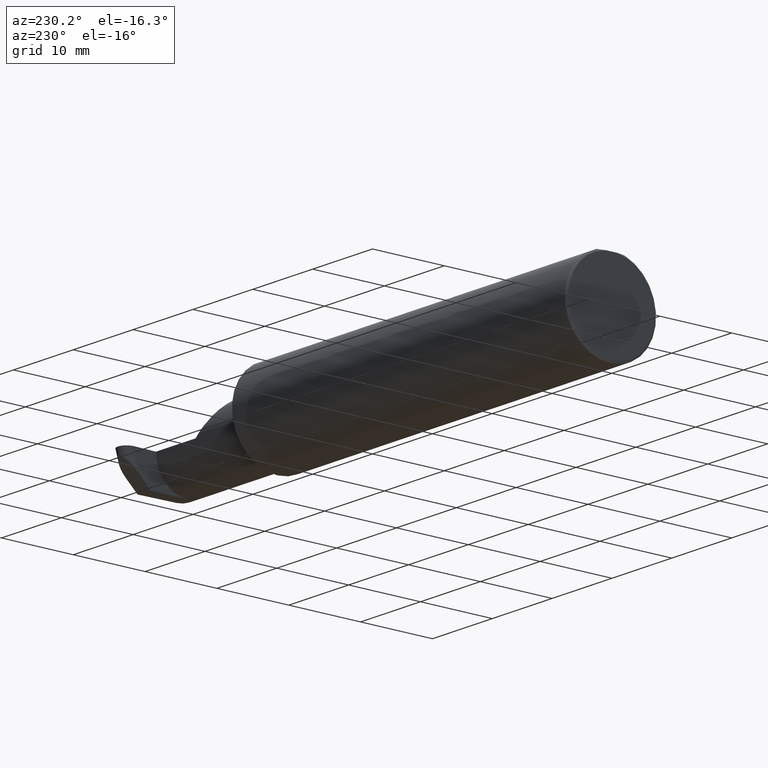
[diagram: clean part render]
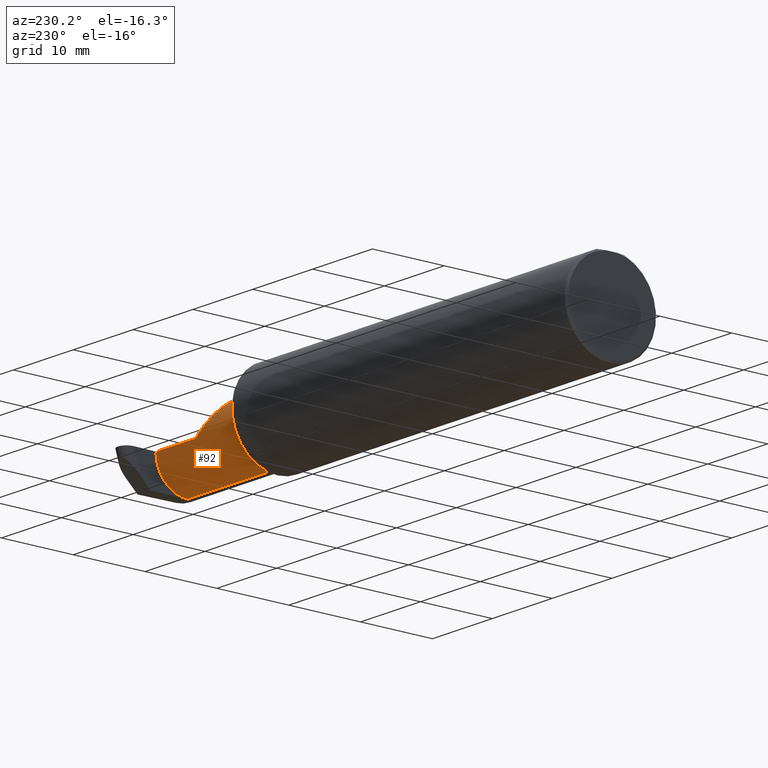
[diagram: same view with one face highlighted and labeled with its STEP entity id]
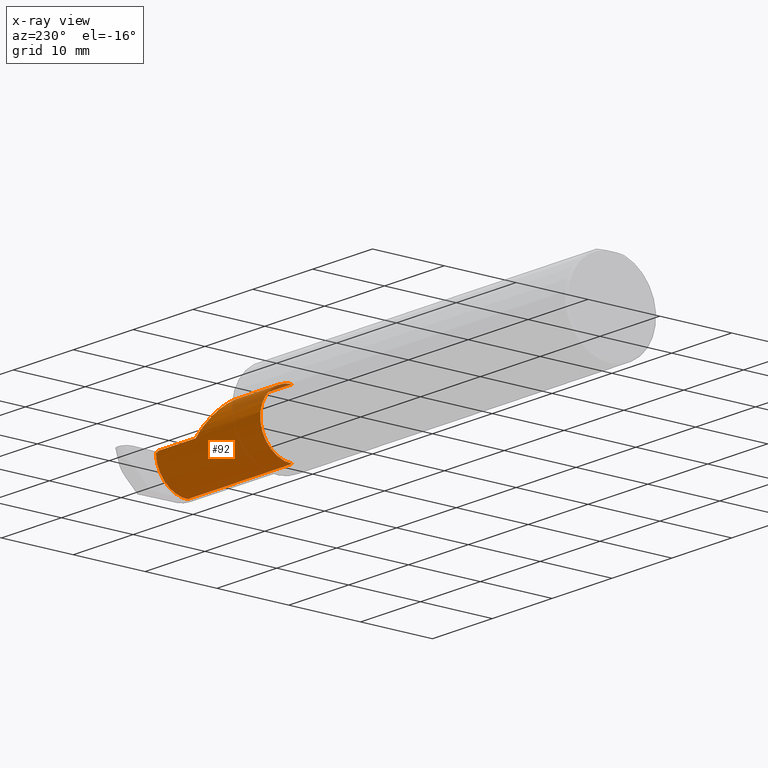
[diagram: x-ray of the same camera — body ghosted, the highlighted face saturated]
A machine part, auxiliary view. The second image highlights one B-rep face of the part: STEP entity #92.
The next image is the same camera in x-ray: the body ghosted, the highlighted face saturated — about 6% of this face is hidden behind the body in this view.
In plain terms, the highlighted cylindrical surface (partial cylindrical patch) has radius 4.445 mm, axis along (-1, -0, -0).
Its self-contained STEP definition (entity closure, byte-faithful):
#3 = ORIENTED_EDGE ( 'NONE', *, *, #642, .F. ) ;
#5 = VECTOR ( 'NONE', #792, 39.37007874015748143 ) ;
#31 = LINE ( 'NONE', #288, #456 ) ;
#33 = EDGE_CURVE ( 'NONE', #68, #663, #766, .T. ) ;
#35 = CARTESIAN_POINT ( 'NONE',  ( 2.913428848522521708, -0.1008500000000001479, -0.1750000000000000444 ) ) ;
#49 = CARTESIAN_POINT ( 'NONE',  ( 2.910321839925223752, 0.07404339472834164937, -0.006107411922940873990 ) ) ;
#52 = CARTESIAN_POINT ( 'NONE',  ( 2.474999999999998757, 0.001662626584708286077, 0.1750000000000000722 ) ) ;
#54 = VECTOR ( 'NONE', #653, 39.37007874015748143 ) ;
#68 = VERTEX_POINT ( 'NONE', #79 ) ;
#69 = AXIS2_PLACEMENT_3D ( 'NONE', #671, #133, #91 ) ;
#79 = CARTESIAN_POINT ( 'NONE',  ( 2.225000000000000089, -0.1008500000000001201, 0.1750000000000001277 ) ) ;
#91 = DIRECTION ( 'NONE',  ( 0.000000000000000000, 0.000000000000000000, 1.000000000000000000 ) ) ;
#92 = ADVANCED_FACE ( 'NONE', ( #402 ), #393, .T. ) ;
#105 = EDGE_CURVE ( 'NONE', #786, #782, #31, .T. ) ;
#107 = CARTESIAN_POINT ( 'NONE',  ( 2.899063548541081836, 0.07404339472834166325, -0.006107411922939685704 ) ) ;
#114 = DIRECTION ( 'NONE',  ( 0.000000000000000000, 0.000000000000000000, 1.000000000000000000 ) ) ;
#119 = CARTESIAN_POINT ( 'NONE',  ( 2.913397403057193191, -0.001152430219566465564, -0.1750000000000001832 ) ) ;
#122 = VERTEX_POINT ( 'NONE', #219 ) ;
#123 = CARTESIAN_POINT ( 'NONE',  ( 2.910321839925223752, 0.07404339472834164937, -0.006107411922940873990 ) ) ;
#133 = DIRECTION ( 'NONE',  ( -1.000000000000000000, -0.000000000000000000, -0.000000000000000000 ) ) ;
#135 = DIRECTION ( 'NONE',  ( -1.000000000000000000, -0.000000000000000000, -0.000000000000000000 ) ) ;
#142 = LINE ( 'NONE', #665, #5 ) ;
#159 = ORIENTED_EDGE ( 'NONE', *, *, #388, .T. ) ;
#166 = ORIENTED_EDGE ( 'NONE', *, *, #750, .F. ) ;
#179 = CARTESIAN_POINT ( 'NONE',  ( 2.225000000000000089, -0.1008500000000001062, -0.1750000000000001277 ) ) ;
#180 = CARTESIAN_POINT ( 'NONE',  ( 2.474999999999998757, -0.1008500000000001340, 0.1750000000000001277 ) ) ;
#192 = LINE ( 'NONE', #658, #54 ) ;
#219 = CARTESIAN_POINT ( 'NONE',  ( 2.650000000000000355, 0.07414999999999995206, 9.797174393178813824E-17 ) ) ;
#247 = CARTESIAN_POINT ( 'NONE',  ( 2.899099083631634599, 0.07407892981889442618, -0.004071607948626453088 ) ) ;
#251 = CARTESIAN_POINT ( 'NONE',  ( 2.474999999999998757, -0.1008500000000001340, 0.1750000000000001277 ) ) ;
#272 = EDGE_CURVE ( 'NONE', #752, #122, #748, .T. ) ;
#275 = CARTESIAN_POINT ( 'NONE',  ( 2.899170153812740125, 0.07414999999999995206, 0.000000000000000000 ) ) ;
#282 = VERTEX_POINT ( 'NONE', #35 ) ;
#288 = CARTESIAN_POINT ( 'NONE',  ( 2.200000000000000178, 0.07404339472834170488, -0.006107411922938294456 ) ) ;
#315 = CARTESIAN_POINT ( 'NONE',  ( 2.650000000000000355, 0.07414999999999995206, 9.797174393178813824E-17 ) ) ;
#360 = ORIENTED_EDGE ( 'NONE', *, *, #272, .T. ) ;
#378 = DIRECTION ( 'NONE',  ( -1.000000000000000000, -0.000000000000000000, -0.000000000000000000 ) ) ;
#388 = EDGE_CURVE ( 'NONE', #282, #663, #192, .T. ) ;
#393 = CYLINDRICAL_SURFACE ( 'NONE', #69, 0.1750000000000001277 ) ;
#402 = FACE_OUTER_BOUND ( 'NONE', #584, .T. ) ;
#428 = CARTESIAN_POINT ( 'NONE',  ( 2.899134618722187362, 0.07411446490944718912, -0.002035803974313226544 ) ) ;
#440 = CARTESIAN_POINT ( 'NONE',  ( 2.912123349427337082, 0.07056399972054014369, -0.1057442486376025670 ) ) ;
#442 = ORIENTED_EDGE ( 'NONE', *, *, #105, .F. ) ;
#456 = VECTOR ( 'NONE', #135, 39.37007874015748143 ) ;
#468 = B_SPLINE_CURVE_WITH_KNOTS ( 'NONE', 3,
 ( #107, #247, #428, #809 ),
 .UNSPECIFIED., .F., .F.,
 ( 4, 4 ),
 ( 0.000000000000000000, 1.000000000000000000 ),
 .UNSPECIFIED. ) ;
#479 = EDGE_CURVE ( 'NONE', #122, #559, #142, .T. ) ;
#549 = ORIENTED_EDGE ( 'NONE', *, *, #33, .F. ) ;
#557 = ORIENTED_EDGE ( 'NONE', *, *, #479, .T. ) ;
#559 = VERTEX_POINT ( 'NONE', #275 ) ;
#582 = DIRECTION ( 'NONE',  ( -1.000000000000000000, -0.000000000000000000, -0.000000000000000000 ) ) ;
#584 = EDGE_LOOP ( 'NONE', ( #687, #159, #549, #166, #360, #557, #3, #442 ) ) ;
#589 = CARTESIAN_POINT ( 'NONE',  ( 2.200000000000000178, -0.1008500000000001340, 0.1750000000000001277 ) ) ;
#607 = AXIS2_PLACEMENT_3D ( 'NONE', #769, #378, #114 ) ;
#626 = CARTESIAN_POINT ( 'NONE',  ( 2.913428848522521708, -0.1008500000000001479, -0.1750000000000000444 ) ) ;
#632 = EDGE_CURVE ( 'NONE', #282, #786, #652, .T. ) ;
#638 = CARTESIAN_POINT ( 'NONE',  ( 2.547487373415290968, 0.07414999999999995206, 0.1025126265847084717 ) ) ;
#642 = EDGE_CURVE ( 'NONE', #782, #559, #468, .T. ) ;
#652 =( BOUNDED_CURVE ( )  B_SPLINE_CURVE ( 3, ( #626, #119, #440, #49 ),
 .UNSPECIFIED., .F., .T. ) 
 B_SPLINE_CURVE_WITH_KNOTS ( ( 4, 4 ),
 ( 3.159045946109736214, 4.694935687864727925 ),
 .UNSPECIFIED. ) 
 CURVE ( )  GEOMETRIC_REPRESENTATION_ITEM ( )  RATIONAL_B_SPLINE_CURVE ( ( 1.000000000000000000, 0.8128932002257716061, 0.8128932002257716061, 1.000000000000000000 ) ) 
 REPRESENTATION_ITEM ( '' )  );
#653 = DIRECTION ( 'NONE',  ( -1.000000000000000000, -0.000000000000000000, -0.000000000000000000 ) ) ;
#658 = CARTESIAN_POINT ( 'NONE',  ( 2.200000000000000178, -0.1008500000000001201, -0.1750000000000001277 ) ) ;
#663 = VERTEX_POINT ( 'NONE', #179 ) ;
#665 = CARTESIAN_POINT ( 'NONE',  ( 2.200000000000000178, 0.07414999999999995206, 9.797174393178813824E-17 ) ) ;
#671 = CARTESIAN_POINT ( 'NONE',  ( 2.200000000000000178, -0.1008500000000001340, 0.000000000000000000 ) ) ;
#687 = ORIENTED_EDGE ( 'NONE', *, *, #632, .F. ) ;
#713 = CARTESIAN_POINT ( 'NONE',  ( 2.899063548541081836, 0.07404339472834166325, -0.006107411922939685704 ) ) ;
#745 = VECTOR ( 'NONE', #582, 39.37007874015748143 ) ;
#748 =( BOUNDED_CURVE ( )  B_SPLINE_CURVE ( 3, ( #180, #52, #638, #315 ),
 .UNSPECIFIED., .F., .T. ) 
 B_SPLINE_CURVE_WITH_KNOTS ( ( 4, 4 ),
 ( 0.000000000000000000, 1.570796326794896336 ),
 .UNSPECIFIED. ) 
 CURVE ( )  GEOMETRIC_REPRESENTATION_ITEM ( )  RATIONAL_B_SPLINE_CURVE ( ( 1.000000000000000000, 0.8047378541243650485, 0.8047378541243650485, 1.000000000000000000 ) ) 
 REPRESENTATION_ITEM ( '' )  );
#750 = EDGE_CURVE ( 'NONE', #752, #68, #822, .T. ) ;
#752 = VERTEX_POINT ( 'NONE', #251 ) ;
#766 = CIRCLE ( 'NONE', #607, 0.1750000000000001277 ) ;
#769 = CARTESIAN_POINT ( 'NONE',  ( 2.225000000000000089, -0.1008500000000001340, 0.000000000000000000 ) ) ;
#782 = VERTEX_POINT ( 'NONE', #713 ) ;
#786 = VERTEX_POINT ( 'NONE', #123 ) ;
#792 = DIRECTION ( 'NONE',  ( 1.000000000000000000, 0.000000000000000000, 0.000000000000000000 ) ) ;
#809 = CARTESIAN_POINT ( 'NONE',  ( 2.899170153812740125, 0.07414999999999995206, 0.000000000000000000 ) ) ;
#822 = LINE ( 'NONE', #589, #745 ) ;